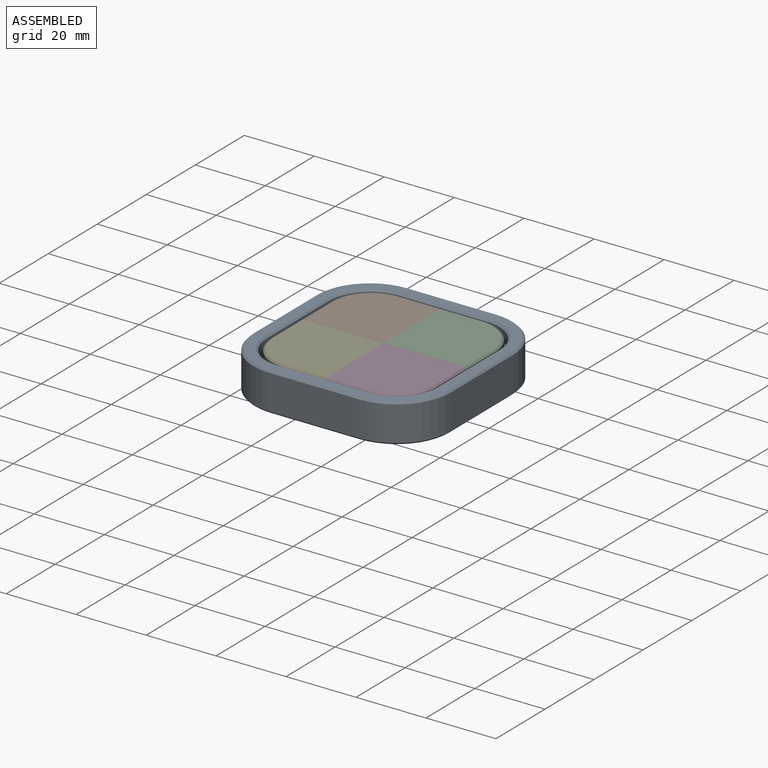
[diagram: assembled view]
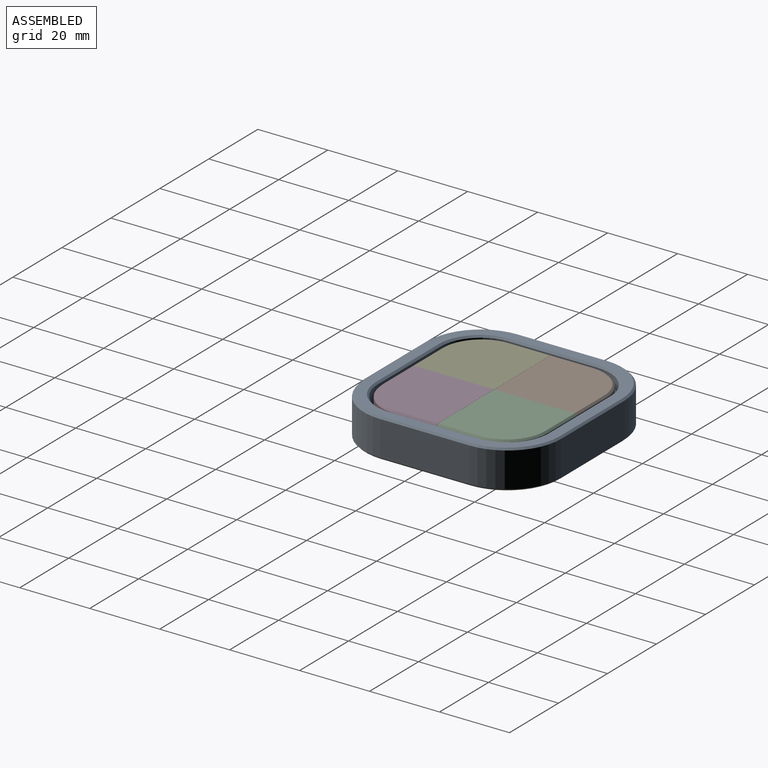
[diagram: assembled view, second angle]
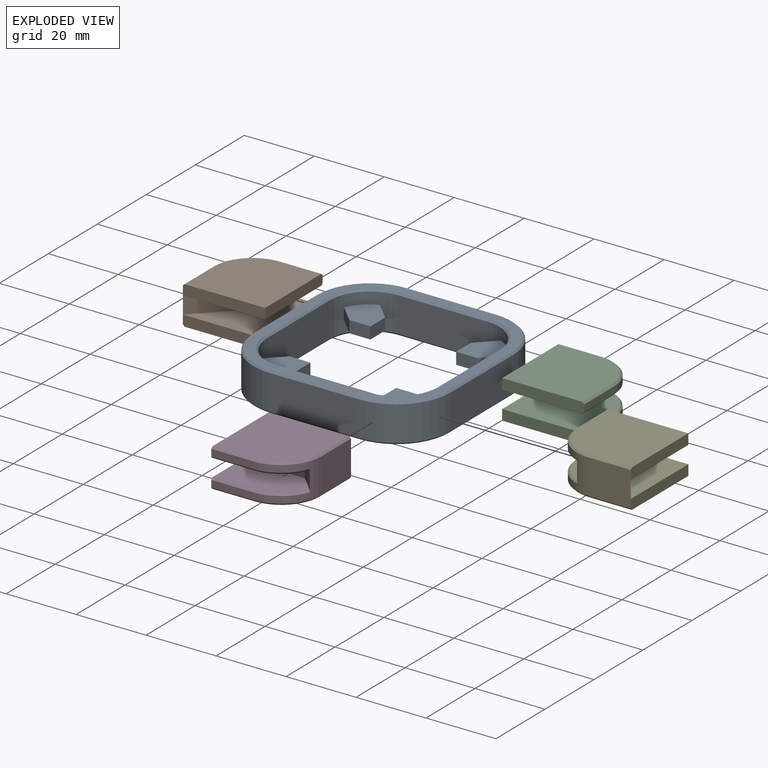
[diagram: exploded view]
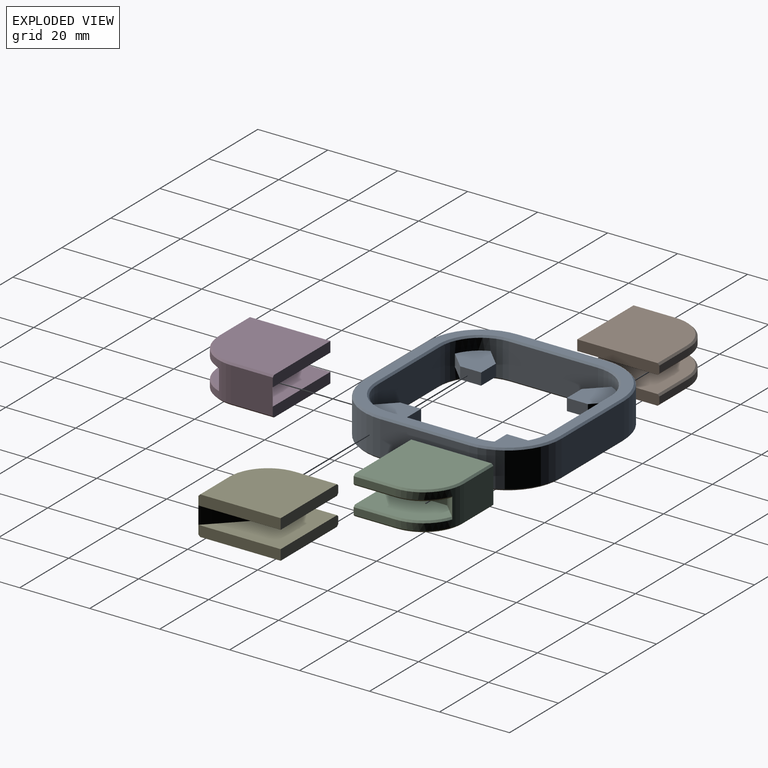
[diagram: exploded view, second angle]
ASSEMBLY  parts=5 mates=9
PART A: 74 faces, bbox 56.5x56.5x11 mm
  f0: plane 25.5x10mm, normal (-1,0,0), area 255mm2, adj f38,f41,f61,f69
  f1: plane 25.5x10mm, normal (0,-1,0), area 255mm2, adj f38,f39,f65,f73
  f2: plane 25.5x10mm, normal (1,0,0), area 255mm2, adj f39,f40,f62,f70
  f3: plane 25.5x10mm, normal (0,1,0), area 255mm2, adj f10,f13,f46,f54
  f4: plane 25.5x10mm, normal (1,0,0), area 255mm2, adj f10,f11,f49,f57
  f5: plane 25.5x10mm, normal (0,-1,0), area 255mm2, adj f11,f12,f45,f53
  f6: plane 25.5x10mm, normal (-1,0,0), area 255mm2, adj f12,f13,f42,f50
  f7: plane 25.5x10mm, normal (0,1,0), area 255mm2, adj f40,f41,f58,f66
  f8: plane 55.5x55.5mm, normal (0,0,1), area 560.5mm2, adj f50,f51,f52,f53,f54,f55,f56,f57
  f9: plane 55.5x55.5mm, normal (0,0,-1), area 560.5mm2, adj f42,f43,f44,f45,f46,f47,f48,f49
  f10: cylinder r=11.5mm len=11.5mm, axis (0,0,1), area 151.1mm2, adj f3,f4,f32,f33,f34,f35,f48,f56
  f11: cylinder r=11.5mm len=11.5mm, axis (0,0,-1), area 151.1mm2, adj f4,f5,f28,f29,f30,f31,f47,f55
  f12: cylinder r=11.5mm len=11.5mm, axis (0,0,1), area 151.1mm2, adj f5,f6,f22,f23,f24,f25,f43,f51
  f13: cylinder r=11.5mm len=11.5mm, axis (0,0,-1), area 151.1mm2, adj f3,f6,f16,f17,f18,f19,f44,f52
  f14: plane 6x3.4mm, normal (0,1,0), area 20.4mm2, adj f15,f16,f17,f19
  f15: plane 6x3.4mm, normal (-1,0,0), area 20.4mm2, adj f14,f16,f17,f18
  f16: plane 11.06x11.06mm, normal (0,0,-1), area 83.3mm2, adj f13,f14,f15,f18,f19
  f17: plane 11.06x11.06mm, normal (0,0,1), area 83.3mm2, adj f13,f14,f15,f18,f19
  f18: plane 5.06x5.06mm, normal (-0.71,-0.71,0), area 24.3mm2, adj f13,f15,f16,f17
  f19: plane 5.06x5.06mm, normal (0.71,0.71,0), area 24.3mm2, adj f13,f14,f16,f17
  f20: plane 6x3.4mm, normal (-1,0,0), area 20.4mm2, adj f21,f22,f23,f25
  f21: plane 6x3.4mm, normal (0,-1,0), area 20.4mm2, adj f20,f22,f23,f24
  f22: plane 11.06x11.06mm, normal (0,0,-1), area 83.3mm2, adj f12,f20,f21,f24,f25
  f23: plane 11.06x11.06mm, normal (0,0,1), area 83.3mm2, adj f12,f20,f21,f24,f25
  f24: plane 5.06x5.06mm, normal (0.71,-0.71,0), area 24.3mm2, adj f12,f21,f22,f23
  f25: plane 5.06x5.06mm, normal (-0.71,0.71,0), area 24.3mm2, adj f12,f20,f22,f23
  f26: plane 6x3.4mm, normal (0,-1,0), area 20.4mm2, adj f27,f28,f29,f31
  f27: plane 6x3.4mm, normal (1,0,0), area 20.4mm2, adj f26,f28,f29,f30
  f28: plane 11.06x11.06mm, normal (0,0,-1), area 83.3mm2, adj f11,f26,f27,f30,f31
  f29: plane 11.06x11.06mm, normal (0,0,1), area 83.3mm2, adj f11,f26,f27,f30,f31
  f30: plane 5.06x5.06mm, normal (0.71,0.71,0), area 24.3mm2, adj f11,f27,f28,f29
  f31: plane 5.06x5.06mm, normal (-0.71,-0.71,0), area 24.3mm2, adj f11,f26,f28,f29
  f32: plane 5.06x5.06mm, normal (0.71,-0.71,0), area 24.3mm2, adj f10,f34,f35,f36
  f33: plane 5.06x5.06mm, normal (-0.71,0.71,0), area 24.3mm2, adj f10,f34,f35,f37
  f34: plane 11.06x11.06mm, normal (0,0,1), area 83.3mm2, adj f10,f32,f33,f36,f37
  f35: plane 11.06x11.06mm, normal (0,0,-1), area 83.3mm2, adj f10,f32,f33,f36,f37
  f36: plane 6x3.4mm, normal (1,0,0), area 20.4mm2, adj f32,f34,f35,f37
  f37: plane 6x3.4mm, normal (0,1,0), area 20.4mm2, adj f33,f34,f35,f36
  f38: cylinder r=15.5mm len=15.5mm, axis (0,0,-1), area 243.5mm2, adj f0,f1,f63,f71
  f39: cylinder r=15.5mm len=15.5mm, axis (0,0,1), area 243.5mm2, adj f1,f2,f64,f72
  f40: cylinder r=15.5mm len=15.5mm, axis (0,0,-1), area 243.5mm2, adj f2,f7,f60,f68
  f41: cylinder r=15.5mm len=15.5mm, axis (0,0,1), area 243.5mm2, adj f0,f7,f59,f67
  f42: plane 25.5x0.5mm, normal (-0.71,0,-0.71), area 18mm2, adj f6,f9,f43,f44
  f43: cone r=12mm half-angle=45deg, axis (0,0,-1), area 13.1mm2, adj f9,f12,f42,f45
  f44: cone r=12mm half-angle=45deg, axis (0,0,-1), area 13.1mm2, adj f9,f13,f42,f46
  f45: plane 25.5x0.5mm, normal (0,-0.71,-0.71), area 18mm2, adj f5,f9,f43,f47
  f46: plane 25.5x0.5mm, normal (0,0.71,-0.71), area 18mm2, adj f3,f9,f44,f48
  f47: cone r=12mm half-angle=45deg, axis (0,0,-1), area 13.1mm2, adj f9,f11,f45,f49
  f48: cone r=12mm half-angle=45deg, axis (0,0,-1), area 13.1mm2, adj f9,f10,f46,f49
  f49: plane 25.5x0.5mm, normal (0.71,0,-0.71), area 18mm2, adj f4,f9,f47,f48
  f50: plane 25.5x0.5mm, normal (-0.71,0,0.71), area 18mm2, adj f6,f8,f51,f52
  f51: cone r=12mm half-angle=45deg, axis (0,0,1), area 13.1mm2, adj f8,f12,f50,f53
  f52: cone r=12mm half-angle=45deg, axis (0,0,1), area 13.1mm2, adj f8,f13,f50,f54
  f53: plane 25.5x0.5mm, normal (0,-0.71,0.71), area 18mm2, adj f5,f8,f51,f55
  f54: plane 25.5x0.5mm, normal (0,0.71,0.71), area 18mm2, adj f3,f8,f52,f56
  f55: cone r=12mm half-angle=45deg, axis (0,0,1), area 13.1mm2, adj f8,f11,f53,f57
  f56: cone r=12mm half-angle=45deg, axis (0,0,1), area 13.1mm2, adj f8,f10,f54,f57
  f57: plane 25.5x0.5mm, normal (0.71,0,0.71), area 18mm2, adj f4,f8,f55,f56
  f58: plane 25.5x0.5mm, normal (0,0.71,-0.71), area 18mm2, adj f7,f9,f59,f60
  f59: cone r=15mm half-angle=45deg, axis (0,0,1), area 16.9mm2, adj f9,f41,f58,f61
  f60: cone r=15mm half-angle=45deg, axis (0,0,1), area 16.9mm2, adj f9,f40,f58,f62
  f61: plane 25.5x0.5mm, normal (-0.71,0,-0.71), area 18mm2, adj f0,f9,f59,f63
  f62: plane 25.5x0.5mm, normal (0.71,0,-0.71), area 18mm2, adj f2,f9,f60,f64
  f63: cone r=15mm half-angle=45deg, axis (0,0,1), area 16.9mm2, adj f9,f38,f61,f65
  f64: cone r=15mm half-angle=45deg, axis (0,0,1), area 16.9mm2, adj f9,f39,f62,f65
  f65: plane 25.5x0.5mm, normal (0,-0.71,-0.71), area 18mm2, adj f1,f9,f63,f64
  f66: plane 25.5x0.5mm, normal (0,0.71,0.71), area 18mm2, adj f7,f8,f67,f68
  f67: cone r=15mm half-angle=45deg, axis (0,0,-1), area 16.9mm2, adj f8,f41,f66,f69
  f68: cone r=15mm half-angle=45deg, axis (0,0,-1), area 16.9mm2, adj f8,f40,f66,f70
  f69: plane 25.5x0.5mm, normal (-0.71,0,0.71), area 18mm2, adj f0,f8,f67,f71
  f70: plane 25.5x0.5mm, normal (0.71,0,0.71), area 18mm2, adj f2,f8,f68,f72
  f71: cone r=15mm half-angle=45deg, axis (0,0,-1), area 16.9mm2, adj f8,f38,f69,f73
  f72: cone r=15mm half-angle=45deg, axis (0,0,-1), area 16.9mm2, adj f8,f39,f70,f73
  f73: plane 25.5x0.5mm, normal (0,-0.71,0.71), area 18mm2, adj f1,f8,f71,f72
PART B: 25 faces, bbox 23.5x23.5x11 mm
  f0: plane 12x10mm, normal (0,-1,0), area 120mm2, adj f1,f8,f9,f14,f17,f20
  f1: plane 23.5x3mm, normal (1,0,0), area 70.4mm2, adj f0,f2,f4,f5,f20
  f2: plane 23.5x3mm, normal (0,1,0), area 70.2mm2, adj f1,f3,f4,f5,f18,f23
  f3: plane 12x2mm, normal (-1,0,0), area 24mm2, adj f2,f14,f18,f23
  f4: plane 23x23mm, normal (0,0,1), area 503mm2, adj f1,f2,f18,f19,f20
  f5: plane 23.5x23mm, normal (0,0,-1), area 436.3mm2, adj f1,f2,f6,f7,f8,f23,f24
  f6: plane 5.5x5mm, normal (-1,0,0), area 27.5mm2, adj f5,f7,f8,f13
  f7: plane 6.01x4.85mm, normal (-0.71,0.71,0), area 34.5mm2, adj f5,f6,f13,f14,f22,f24
  f8: plane 11x11mm, normal (0.71,0.71,0), area 77.8mm2, adj f0,f5,f6,f13
  f9: plane 23.5x3mm, normal (1,0,0), area 70.4mm2, adj f0,f10,f12,f13,f17
  f10: plane 23.5x3mm, normal (0,1,0), area 70.2mm2, adj f9,f11,f12,f13,f15,f21
  f11: plane 12x2mm, normal (-1,0,0), area 24mm2, adj f10,f14,f15,f21
  f12: plane 23x23mm, normal (0,0,-1), area 503mm2, adj f9,f10,f15,f16,f17
  f13: plane 23.5x23mm, normal (0,0,1), area 436.3mm2, adj f6,f7,f8,f9,f10,f21,f22
  f14: cylinder r=11.5mm len=11.5mm, axis (0,0,-1), area 95.7mm2, adj f0,f3,f7,f11,f16,f19,f22,f24
  f15: plane 12x0.5mm, normal (-0.71,0,-0.71), area 8.5mm2, adj f10,f11,f12,f16
  f16: cone r=11mm half-angle=45deg, axis (0,0,1), area 12.5mm2, adj f12,f14,f15,f17
  f17: plane 12x0.5mm, normal (0,-0.71,-0.71), area 8.5mm2, adj f0,f9,f12,f16
  f18: plane 12x0.5mm, normal (-0.71,0,0.71), area 8.5mm2, adj f2,f3,f4,f19
  f19: cone r=11mm half-angle=45deg, axis (0,0,-1), area 12.5mm2, adj f4,f14,f18,f20
  f20: plane 12x0.5mm, normal (0,-0.71,0.71), area 8.5mm2, adj f0,f1,f4,f19
  f21: plane 12x0.5mm, normal (-0.71,0,0.71), area 8.5mm2, adj f10,f11,f13,f22
  f22: cone r=11mm half-angle=45deg, axis (0,0,-1), area 9.9mm2, adj f7,f13,f14,f21
  f23: plane 12x0.5mm, normal (-0.71,0,-0.71), area 8.5mm2, adj f2,f3,f5,f24
  f24: cone r=11mm half-angle=45deg, axis (0,0,1), area 9.9mm2, adj f5,f7,f14,f23
PART C: same geometry as B
PART D: same geometry as B
PART E: same geometry as B
PLACE A t=(-12.3,2.95,9.58)mm
PLACE B rot(axis=(0,0,-1),90deg) t=(-12.23,26.53,11.91)mm fixed
PLACE C rot(axis=(0,0,1),180deg) t=(11.23,3.03,11.91)mm
PLACE D rot(axis=(0,0,1),90deg) t=(-12.27,-20.51,11.91)mm
PLACE E t=(-35.73,2.99,11.91)mm fixed
MATE planar B.f9 <-> C.f10  axis (0,-1,0) through (-23.96,3.03,5.41)mm
MATE planar E.f3 <-> B.f0  axis (-1,0,0) through (-35.73,-3.01,13.41)mm
MATE planar E.f12 <-> C.f12  axis (0,0,-1) through (-23.27,-8.04,3.91)mm
MATE planar E.f10 <-> D.f9  axis (0,1,0) through (-23.94,2.99,5.41)mm
MATE parallel A.f29 <-> B.f4  axis (0,0,1) through (-29.47,20.12,11.28)mm
MATE planar E.f12 <-> B.f12  axis (0,0,-1) through (-23.27,-8.04,3.91)mm
MATE planar E.f4 <-> B.f4  axis (0,0,1) through (-23.27,-8.04,14.91)mm
MATE planar D.f0 <-> C.f3  axis (1,0,0) through (11.23,-3.01,9.41)mm
MATE planar B.f3 <-> C.f0  axis (0,1,0) through (-18.23,26.53,13.41)mm
